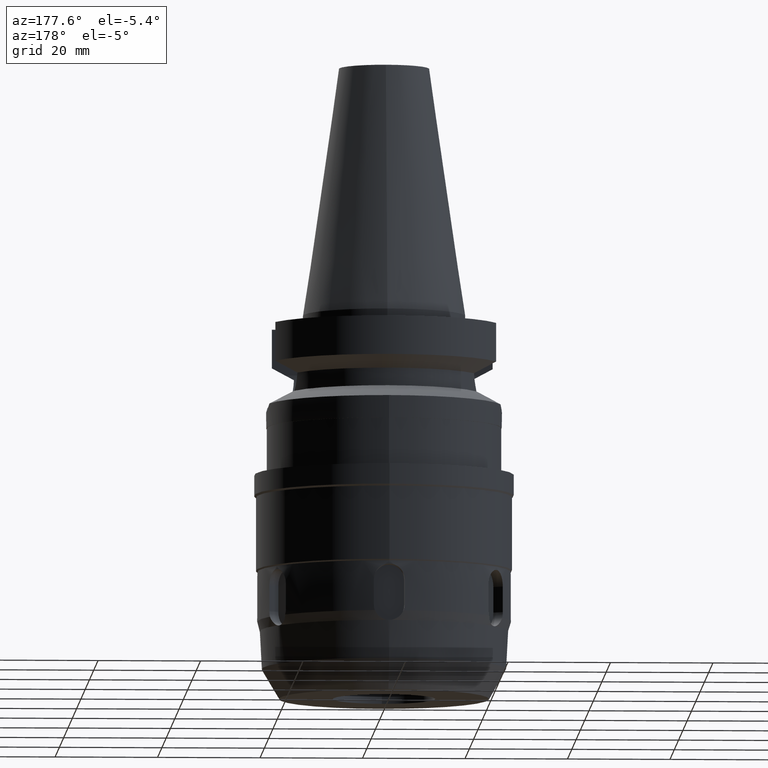
[diagram: clean part render]
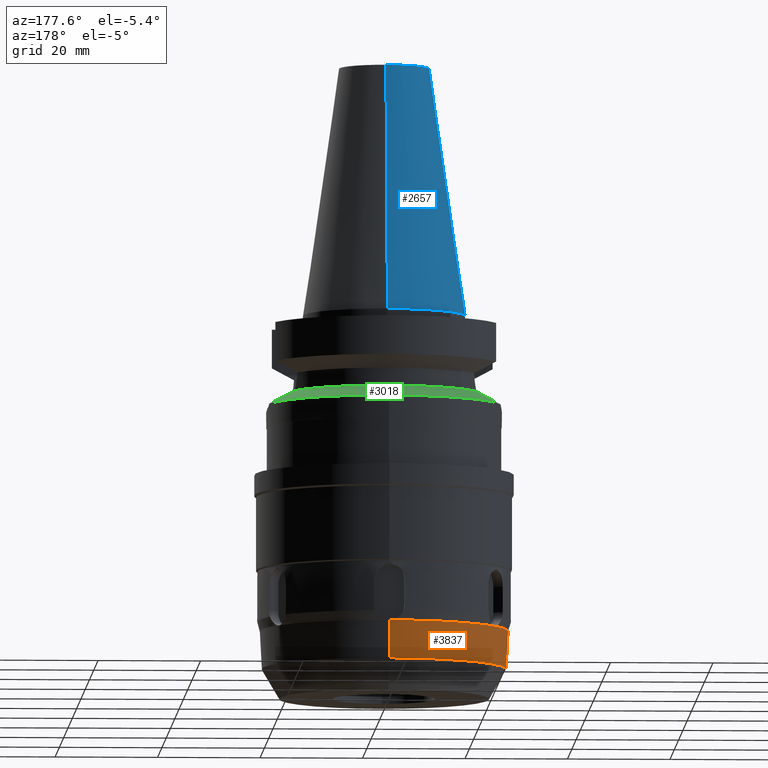
[diagram: same view with three faces highlighted in distinct colors, each labeled with its STEP entity id]
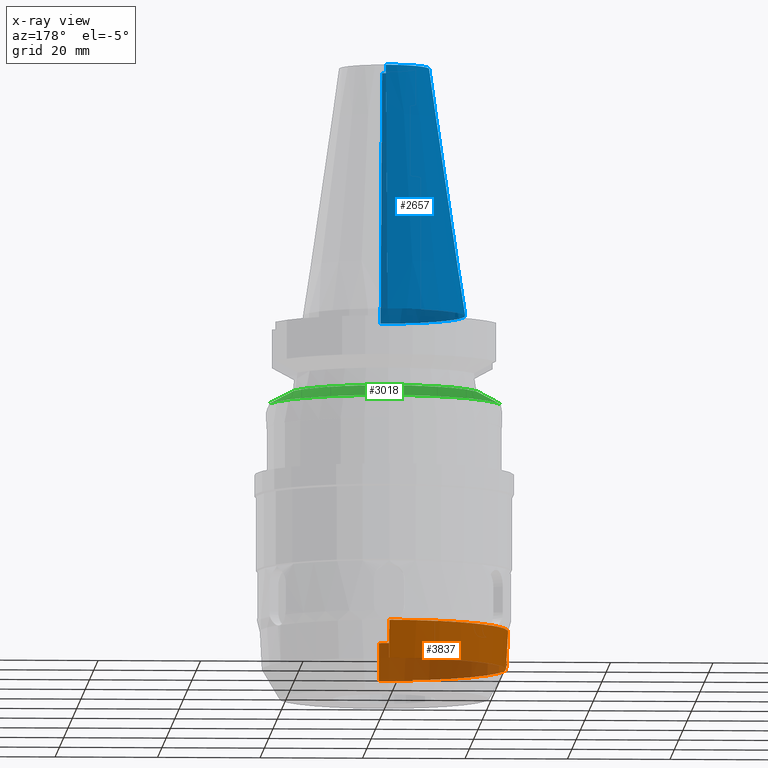
[diagram: x-ray of the same camera — body ghosted, the three highlighted faces saturated]
A machine part, auxiliary view with three faces highlighted in distinct colors.
The next image is the same camera in x-ray (body ghosted, the three faces saturated) — at least one of them is partly hidden behind the body in this view.
Their STEP definitions:

[orange] entity #3837 — the highlighted conical surface has half-angle 3 deg.
#1046=CARTESIAN_POINT('',(0.E0,0.E0,-6.176705353144E1));
#1047=DIRECTION('',(0.E0,0.E0,-1.E0));
#1048=DIRECTION('',(-8.750227635786E-1,-4.840817732772E-1,0.E0));
#1049=AXIS2_PLACEMENT_3D('',#1046,#1047,#1048);
#1098=CARTESIAN_POINT('',(0.E0,0.E0,-6.176705353144E1));
#1099=DIRECTION('',(0.E0,0.E0,-1.E0));
#1100=DIRECTION('',(-1.828426862211E-2,-9.998328287874E-1,0.E0));
#1101=AXIS2_PLACEMENT_3D('',#1098,#1099,#1100);
#1204=DIRECTION('',(0.E0,-5.233597852942E-2,-9.986295335866E-1));
#1205=VECTOR('',#1204,7.388125180987E0);
#1206=CARTESIAN_POINT('',(0.E0,2.424799802806E1,-6.179999999643E1));
#1207=LINE('',#1206,#1205);
#1781=CARTESIAN_POINT('',(0.E0,0.E0,-6.176705353144E1));
#1782=DIRECTION('',(0.E0,0.E0,-1.E0));
#1783=DIRECTION('',(-8.567384949564E-1,5.157510555102E-1,0.E0));
#1784=AXIS2_PLACEMENT_3D('',#1781,#1782,#1783);
#1808=CARTESIAN_POINT('',(-2.077567292429E1,1.250682024917E1,
-6.176705357274E1));
#1809=CARTESIAN_POINT('',(-2.080057047721E1,1.246471904934E1,
-6.177436246029E1));
#1810=CARTESIAN_POINT('',(-2.085040319294E1,1.238012573045E1,
-6.178656058046E1));
#1811=CARTESIAN_POINT('',(-2.092507019523E1,1.225236243493E1,
-6.179755534759E1));
#1812=CARTESIAN_POINT('',(-2.097466219925E1,1.216681412811E1,
-6.179999992088E1));
#1813=CARTESIAN_POINT('',(-2.099938170847E1,1.212399868220E1,
-6.179999992088E1));
#1818=CARTESIAN_POINT('',(-2.099938170847E1,1.212399868220E1,
-6.179999992088E1));
#1819=CARTESIAN_POINT('',(-2.102410121770E1,1.208118323628E1,
-6.179999992088E1));
#1820=CARTESIAN_POINT('',(-2.107339221761E1,1.199546115890E1,
-6.179755535042E1));
#1821=CARTESIAN_POINT('',(-2.114670499910E1,1.186691593938E1,
-6.178656057056E1));
#1822=CARTESIAN_POINT('',(-2.119504854817E1,1.178146300682E1,
-6.177436248150E1));
#1823=CARTESIAN_POINT('',(-2.121906060593E1,1.173885027166E1,
-6.176705354719E1));
#1828=CARTESIAN_POINT('',(-2.121906051849E1,-1.173885040856E1,
-6.176705357273E1));
#1829=CARTESIAN_POINT('',(-2.119504858636E1,-1.178146292181E1,
-6.177436246029E1));
#1830=CARTESIAN_POINT('',(-2.114670498108E1,-1.186691597902E1,
-6.178656058046E1));
#1831=CARTESIAN_POINT('',(-2.107339222264E1,-1.199546114759E1,
-6.179755534759E1));
#1832=CARTESIAN_POINT('',(-2.102410121769E1,-1.208118323630E1,
-6.179999992088E1));
#1833=CARTESIAN_POINT('',(-2.099938170847E1,-1.212399868220E1,
-6.179999992088E1));
#1838=CARTESIAN_POINT('',(-2.099938170847E1,-1.212399868220E1,
-6.179999992088E1));
#1839=CARTESIAN_POINT('',(-2.097466219924E1,-1.216681412813E1,
-6.179999992088E1));
#1840=CARTESIAN_POINT('',(-2.092507020252E1,-1.225236242492E1,
-6.179755535042E1));
#1841=CARTESIAN_POINT('',(-2.085040316762E1,-1.238012576587E1,
-6.178656057056E1));
#1842=CARTESIAN_POINT('',(-2.080057053174E1,-1.246471897376E1,
-6.177436248150E1));
#1843=CARTESIAN_POINT('',(-2.077567284944E1,-1.250682039335E1,
-6.176705354719E1));
#1848=CARTESIAN_POINT('',(-4.433824356476E-1,-2.424567038029E1,
-6.176705449886E1));
#1849=CARTESIAN_POINT('',(-3.944822234836E-1,-2.424618161946E1,
-6.177436168743E1));
#1850=CARTESIAN_POINT('',(-2.962999440218E-1,-2.424704194545E1,
-6.178656094283E1));
#1851=CARTESIAN_POINT('',(-1.483226172691E-1,-2.424782321370E1,
-6.179755520816E1));
#1852=CARTESIAN_POINT('',(-4.943903759456E-2,-2.424799802806E1,
-6.179999999643E1));
#1853=CARTESIAN_POINT('',(-3.069508009511E-14,-2.424799802806E1,
-6.179999999643E1));
#1858=DIRECTION('',(0.E0,5.233597852942E-2,-9.986295335866E-1));
#1859=VECTOR('',#1858,7.388125180987E0);
#1860=CARTESIAN_POINT('',(-3.069508009511E-14,-2.424799802806E1,
-6.179999999643E1));
#1861=LINE('',#1860,#1859);
#1865=CARTESIAN_POINT('',(0.E0,0.E0,-6.9178E1));
#1866=DIRECTION('',(0.E0,0.E0,-1.E0));
#1867=DIRECTION('',(0.E0,-1.E0,0.E0));
#1868=AXIS2_PLACEMENT_3D('',#1865,#1866,#1867);
#1873=CARTESIAN_POINT('',(0.E0,2.424799802806E1,-6.179999999643E1));
#1874=CARTESIAN_POINT('',(-4.943904012184E-2,2.424799802806E1,
-6.179999999643E1));
#1875=CARTESIAN_POINT('',(-1.483220929875E-1,2.424782325779E1,
-6.179755531375E1));
#1876=CARTESIAN_POINT('',(-2.963017936203E-1,2.424704177342E1,
-6.178656057235E1));
#1877=CARTESIAN_POINT('',(-3.944782458137E-1,2.424618197970E1,
-6.177436248262E1));
#1878=CARTESIAN_POINT('',(-4.433880190596E-1,2.424567066254E1,
-6.176705354139E1));
#2357=CARTESIAN_POINT('',(0.E0,2.386133326722E1,-6.9178E1));
#2358=VERTEX_POINT('',#2357);
#2359=CARTESIAN_POINT('',(-2.411529181413E-14,-2.386133326722E1,-6.9178E1));
#2360=VERTEX_POINT('',#2359);
#2361=VERTEX_POINT('',#1818);
#2362=VERTEX_POINT('',#1823);
#2363=VERTEX_POINT('',#1808);
#2364=CARTESIAN_POINT('',(-2.121906096028E1,-1.173884964423E1,
-6.176705353144E1));
#2365=VERTEX_POINT('',#2364);
#2366=VERTEX_POINT('',#1838);
#2367=VERTEX_POINT('',#1843);
#2368=CARTESIAN_POINT('',(-4.433884770266E-1,-2.424567065817E1,
-6.176705353144E1));
#2369=VERTEX_POINT('',#2368);
#2370=VERTEX_POINT('',#1853);
#2371=CARTESIAN_POINT('',(0.E0,2.424799802806E1,-6.179999999643E1));
#2372=VERTEX_POINT('',#2371);
#2373=VERTEX_POINT('',#1878);
#3817=CARTESIAN_POINT('',(0.E0,0.E0,-6.547252676572E1));
#3818=DIRECTION('',(0.E0,0.E0,1.E0));
#3819=DIRECTION('',(0.E0,1.E0,0.E0));
#3820=AXIS2_PLACEMENT_3D('',#3817,#3818,#3819);
#3821=CONICAL_SURFACE('',#3820,2.405552889062E1,3.E0);
#3822=ORIENTED_EDGE('',*,*,#3285,.T.);
#3823=ORIENTED_EDGE('',*,*,#3283,.T.);
#3824=ORIENTED_EDGE('',*,*,#3310,.F.);
#3825=ORIENTED_EDGE('',*,*,#3324,.T.);
#3826=ORIENTED_EDGE('',*,*,#3322,.T.);
#3827=ORIENTED_EDGE('',*,*,#3349,.F.);
#3828=ORIENTED_EDGE('',*,*,#3361,.T.);
#3829=ORIENTED_EDGE('',*,*,#3406,.T.);
#3831=ORIENTED_EDGE('',*,*,#3830,.T.);
#3832=ORIENTED_EDGE('',*,*,#3402,.F.);
#3833=ORIENTED_EDGE('',*,*,#3585,.T.);
#3834=ORIENTED_EDGE('',*,*,#3810,.F.);
#3835=EDGE_LOOP('',(#3822,#3823,#3824,#3825,#3826,#3827,#3828,#3829,#3831,#3832,
#3833,#3834));
#3836=FACE_OUTER_BOUND('',#3835,.F.);
#1050=CIRCLE('',#1049,2.424972451402E1);
#1102=CIRCLE('',#1101,2.424972451402E1);
#1785=CIRCLE('',#1784,2.424972451402E1);
#1814=B_SPLINE_CURVE_WITH_KNOTS('',3,(#1808,#1809,#1810,#1811,#1812,#1813),
.UNSPECIFIED.,.F.,.F.,(4,1,1,4),(0.E0,3.333333333333E-1,6.666666666667E-1,1.E0),
.UNSPECIFIED.);
#1824=B_SPLINE_CURVE_WITH_KNOTS('',3,(#1818,#1819,#1820,#1821,#1822,#1823),
.UNSPECIFIED.,.F.,.F.,(4,1,1,4),(0.E0,3.333333333333E-1,6.666666666667E-1,1.E0),
.UNSPECIFIED.);
#1834=B_SPLINE_CURVE_WITH_KNOTS('',3,(#1828,#1829,#1830,#1831,#1832,#1833),
.UNSPECIFIED.,.F.,.F.,(4,1,1,4),(0.E0,3.333333333333E-1,6.666666666667E-1,1.E0),
.UNSPECIFIED.);
#1844=B_SPLINE_CURVE_WITH_KNOTS('',3,(#1838,#1839,#1840,#1841,#1842,#1843),
.UNSPECIFIED.,.F.,.F.,(4,1,1,4),(0.E0,3.333333333333E-1,6.666666666667E-1,1.E0),
.UNSPECIFIED.);
#1854=B_SPLINE_CURVE_WITH_KNOTS('',3,(#1848,#1849,#1850,#1851,#1852,#1853),
.UNSPECIFIED.,.F.,.F.,(4,1,1,4),(0.E0,3.333333333333E-1,6.666666666667E-1,1.E0),
.UNSPECIFIED.);
#1869=CIRCLE('',#1868,2.386133326722E1);
#1879=B_SPLINE_CURVE_WITH_KNOTS('',3,(#1873,#1874,#1875,#1876,#1877,#1878),
.UNSPECIFIED.,.F.,.F.,(4,1,1,4),(0.E0,3.333333333333E-1,6.666666666667E-1,1.E0),
.UNSPECIFIED.);
#3283=EDGE_CURVE('',#2361,#2362,#1824,.T.);
#3285=EDGE_CURVE('',#2363,#2361,#1814,.T.);
#3310=EDGE_CURVE('',#2365,#2362,#1050,.T.);
#3322=EDGE_CURVE('',#2366,#2367,#1844,.T.);
#3324=EDGE_CURVE('',#2365,#2366,#1834,.T.);
#3349=EDGE_CURVE('',#2369,#2367,#1102,.T.);
#3361=EDGE_CURVE('',#2369,#2370,#1854,.T.);
#3402=EDGE_CURVE('',#2372,#2358,#1207,.T.);
#3406=EDGE_CURVE('',#2370,#2360,#1861,.T.);
#3585=EDGE_CURVE('',#2372,#2373,#1879,.T.);
#3810=EDGE_CURVE('',#2363,#2373,#1785,.T.);
#3830=EDGE_CURVE('',#2360,#2358,#1869,.T.);
#3837=ADVANCED_FACE('',(#3836),#3821,.T.);

[blue] entity #2657 — the highlighted conical surface has half-angle 8.297 deg.
#17=CARTESIAN_POINT('',(0.E0,0.E0,4.84E1));
#18=DIRECTION('',(0.E0,0.E0,-1.E0));
#19=DIRECTION('',(0.E0,-1.E0,0.E0));
#20=AXIS2_PLACEMENT_3D('',#17,#18,#19);
#50=DIRECTION('',(0.E0,-1.443043893540E-1,-9.895333461856E-1));
#51=VECTOR('',#50,4.891194438931E1);
#52=CARTESIAN_POINT('',(0.E0,-8.816791732783E0,4.84E1));
#53=LINE('',#52,#51);
#57=CARTESIAN_POINT('',(0.E0,0.E0,-3.410605131648E-13));
#58=DIRECTION('',(0.E0,0.E0,-1.E0));
#59=DIRECTION('',(0.E0,-1.E0,0.E0));
#60=AXIS2_PLACEMENT_3D('',#57,#58,#59);
#65=DIRECTION('',(0.E0,1.443043893540E-1,-9.895333461856E-1));
#66=VECTOR('',#65,4.891194438931E1);
#67=CARTESIAN_POINT('',(0.E0,8.816791732783E0,4.84E1));
#68=LINE('',#67,#66);
#2305=CARTESIAN_POINT('',(0.E0,-8.816791732783E0,4.84E1));
#2306=CARTESIAN_POINT('',(0.E0,8.816791732783E0,4.84E1));
#2307=VERTEX_POINT('',#2305);
#2308=VERTEX_POINT('',#2306);
#2585=CARTESIAN_POINT('',(0.E0,1.5875E1,-1.350031197944E-13));
#2586=VERTEX_POINT('',#2585);
#2587=CARTESIAN_POINT('',(0.E0,-1.5875E1,-1.350031197944E-13));
#2588=VERTEX_POINT('',#2587);
#2643=CARTESIAN_POINT('',(0.E0,0.E0,2.42E1));
#2644=DIRECTION('',(0.E0,0.E0,-1.E0));
#2645=DIRECTION('',(0.E0,-1.E0,0.E0));
#2646=AXIS2_PLACEMENT_3D('',#2643,#2644,#2645);
#2647=CONICAL_SURFACE('',#2646,1.234589586639E1,8.297E0);
#2649=ORIENTED_EDGE('',*,*,#2648,.F.);
#2650=ORIENTED_EDGE('',*,*,#2630,.F.);
#2652=ORIENTED_EDGE('',*,*,#2651,.T.);
#2654=ORIENTED_EDGE('',*,*,#2653,.T.);
#2655=EDGE_LOOP('',(#2649,#2650,#2652,#2654));
#2656=FACE_OUTER_BOUND('',#2655,.F.);
#21=CIRCLE('',#20,8.816791732783E0);
#61=CIRCLE('',#60,1.5875E1);
#2630=EDGE_CURVE('',#2307,#2308,#21,.T.);
#2648=EDGE_CURVE('',#2308,#2586,#68,.T.);
#2651=EDGE_CURVE('',#2307,#2588,#53,.T.);
#2653=EDGE_CURVE('',#2588,#2586,#61,.T.);
#2657=ADVANCED_FACE('',(#2656),#2647,.T.);

[green] entity #3018 — the highlighted conical surface has half-angle 60 deg.
#532=CARTESIAN_POINT('',(2.255786346208E1,4.488072640470E0,-1.763279163029E1));
#544=CARTESIAN_POINT('',(-1.775736593456E1,6.758398853744E0,-1.532339055353E1));
#545=CARTESIAN_POINT('',(-1.832032224947E1,6.584888923272E0,-1.559152332166E1));
#546=CARTESIAN_POINT('',(-1.943419095595E1,6.198066655572E0,-1.612432409667E1));
#547=CARTESIAN_POINT('',(-2.114853485306E1,5.407662280803E0,-1.695008593649E1));
#548=CARTESIAN_POINT('',(-2.210968087648E1,4.811674977515E0,-1.741546466940E1));
#549=CARTESIAN_POINT('',(-2.255786346208E1,4.488072640470E0,-1.763279163029E1));
#554=CARTESIAN_POINT('',(0.E0,0.E0,-1.763279163029E1));
#555=DIRECTION('',(0.E0,0.E0,-1.E0));
#556=DIRECTION('',(-9.807766722644E-1,1.951335930639E-1,0.E0));
#557=AXIS2_PLACEMENT_3D('',#554,#555,#556);
#562=CARTESIAN_POINT('',(0.E0,0.E0,-1.763279163029E1));
#563=DIRECTION('',(0.E0,0.E0,-1.E0));
#564=DIRECTION('',(0.E0,1.E0,0.E0));
#565=AXIS2_PLACEMENT_3D('',#562,#563,#564);
#570=CARTESIAN_POINT('',(2.255786346208E1,4.488072640470E0,-1.763279163029E1));
#571=CARTESIAN_POINT('',(2.211357008772E1,4.808866841084E0,-1.741735057591E1));
#572=CARTESIAN_POINT('',(2.124321883297E1,5.341259916284E0,-1.699605332790E1));
#573=CARTESIAN_POINT('',(2.002955269011E1,5.928009000723E0,-1.641101693887E1));
#574=CARTESIAN_POINT('',(1.903555385814E1,6.333202218617E0,-1.593366405834E1));
#575=CARTESIAN_POINT('',(1.819535446417E1,6.623405502913E0,-1.553200190355E1));
#576=CARTESIAN_POINT('',(1.775736593456E1,6.758398853744E0,-1.532339055353E1));
#581=CARTESIAN_POINT('',(0.E0,0.E0,-1.532339055353E1));
#582=DIRECTION('',(0.E0,0.E0,1.E0));
#583=DIRECTION('',(9.345982070819E-1,3.557052028286E-1,0.E0));
#584=AXIS2_PLACEMENT_3D('',#581,#582,#583);
#589=CARTESIAN_POINT('',(0.E0,0.E0,-1.532339055353E1));
#590=DIRECTION('',(0.E0,0.E0,1.E0));
#591=DIRECTION('',(0.E0,1.E0,0.E0));
#592=AXIS2_PLACEMENT_3D('',#589,#590,#591);
#2295=CARTESIAN_POINT('',(1.775736593456E1,6.758398853744E0,-1.532339055353E1));
#2510=VERTEX_POINT('',#532);
#2512=CARTESIAN_POINT('',(0.E0,2.3E1,-1.763279163029E1));
#2513=VERTEX_POINT('',#2512);
#2528=VERTEX_POINT('',#2295);
#2533=VERTEX_POINT('',#544);
#2534=VERTEX_POINT('',#549);
#2535=CARTESIAN_POINT('',(0.E0,1.9E1,-1.532339055353E1));
#2536=VERTEX_POINT('',#2535);
#3002=CARTESIAN_POINT('',(0.E0,0.E0,-1.647809109191E1));
#3003=DIRECTION('',(0.E0,0.E0,-1.E0));
#3004=DIRECTION('',(0.E0,-1.E0,0.E0));
#3005=AXIS2_PLACEMENT_3D('',#3002,#3003,#3004);
#3006=CONICAL_SURFACE('',#3005,2.1E1,6.E1);
#3007=ORIENTED_EDGE('',*,*,#2910,.T.);
#3009=ORIENTED_EDGE('',*,*,#3008,.T.);
#3010=ORIENTED_EDGE('',*,*,#2990,.T.);
#3011=ORIENTED_EDGE('',*,*,#2978,.T.);
#3013=ORIENTED_EDGE('',*,*,#3012,.T.);
#3015=ORIENTED_EDGE('',*,*,#3014,.T.);
#3016=EDGE_LOOP('',(#3007,#3009,#3010,#3011,#3013,#3015));
#3017=FACE_OUTER_BOUND('',#3016,.F.);
#550=B_SPLINE_CURVE_WITH_KNOTS('',3,(#544,#545,#546,#547,#548,#549),
.UNSPECIFIED.,.F.,.F.,(4,1,1,4),(0.E0,3.333333333333E-1,6.666666666667E-1,1.E0),
.UNSPECIFIED.);
#558=CIRCLE('',#557,2.3E1);
#566=CIRCLE('',#565,2.3E1);
#577=B_SPLINE_CURVE_WITH_KNOTS('',3,(#570,#571,#572,#573,#574,#575,#576),
.UNSPECIFIED.,.F.,.F.,(4,1,1,1,4),(0.E0,2.5E-1,5.E-1,7.5E-1,1.E0),
.UNSPECIFIED.);
#585=CIRCLE('',#584,1.9E1);
#593=CIRCLE('',#592,1.9E1);
#2910=EDGE_CURVE('',#2533,#2534,#550,.T.);
#2978=EDGE_CURVE('',#2510,#2528,#577,.T.);
#2990=EDGE_CURVE('',#2513,#2510,#566,.T.);
#3008=EDGE_CURVE('',#2534,#2513,#558,.T.);
#3012=EDGE_CURVE('',#2528,#2536,#585,.T.);
#3014=EDGE_CURVE('',#2536,#2533,#593,.T.);
#3018=ADVANCED_FACE('',(#3017),#3006,.T.);